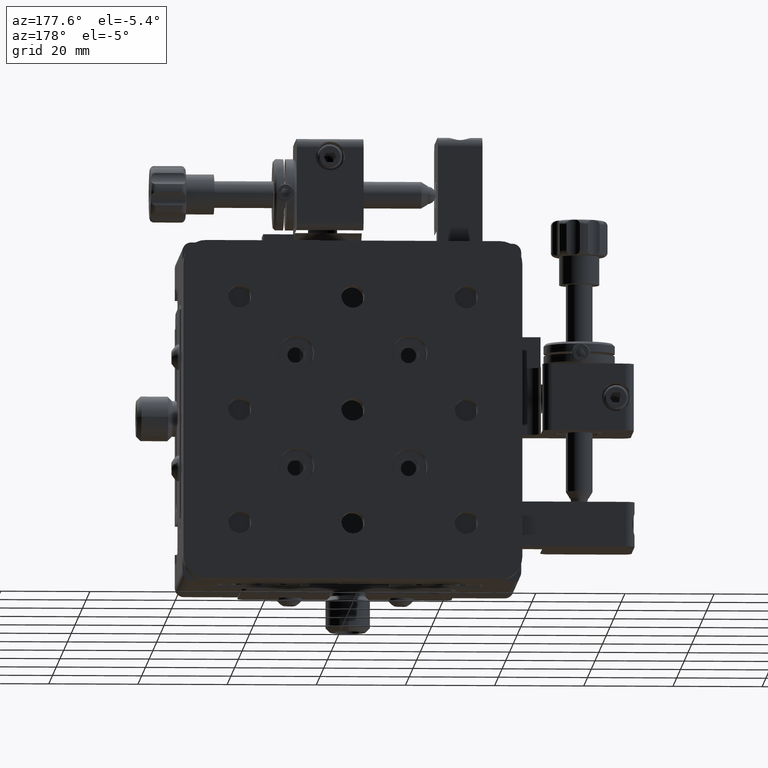
[diagram: clean part render]
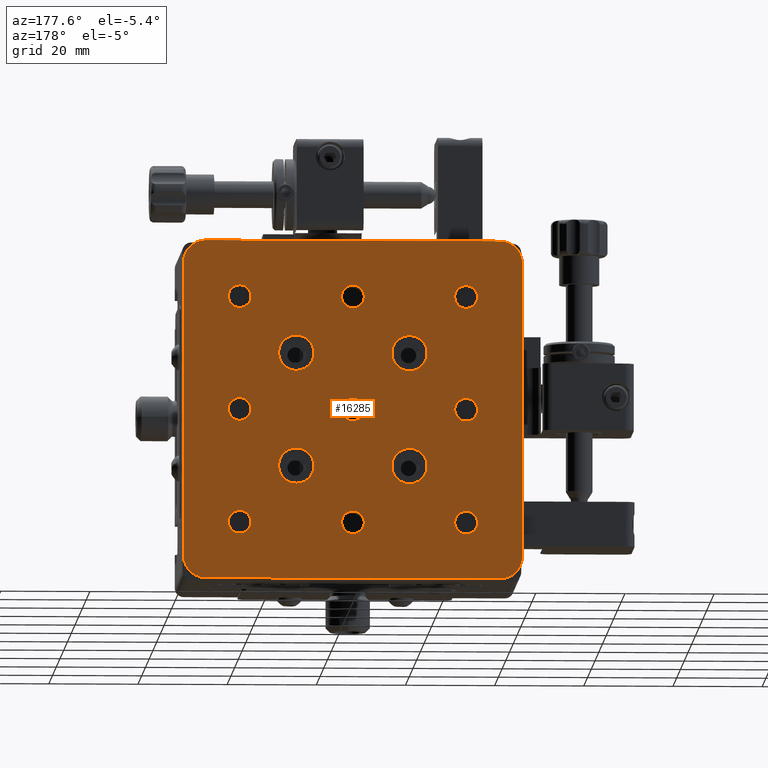
[diagram: same view with one face highlighted and labeled with its STEP entity id]
A machine part, auxiliary view. The second image highlights one B-rep face of the part: STEP entity #16285.
In plain terms, the highlighted planar face has unit normal (0, -1, -0).
Its self-contained STEP definition (entity closure, byte-faithful):
#28 = AXIS2_PLACEMENT_3D ( 'NONE', #21221, #48340, #25168 ) ;
#181 = DIRECTION ( 'NONE',  ( -0.0000000000000000000, 1.000000000000000000, 1.255391989193742200E-016 ) ) ;
#552 = DIRECTION ( 'NONE',  ( 0.0000000000000000000, 0.0000000000000000000, 1.000000000000000000 ) ) ;
#658 = LINE ( 'NONE', #979, #30408 ) ;
#686 = DIRECTION ( 'NONE',  ( 0.0000000000000000000, 0.0000000000000000000, 1.000000000000000000 ) ) ;
#709 = AXIS2_PLACEMENT_3D ( 'NONE', #12782, #39938, #16747 ) ;
#759 = EDGE_CURVE ( 'NONE', #27833, #17888, #25054, .T. ) ;
#979 = CARTESIAN_POINT ( 'NONE',  ( -20.90904611341227300, 26.72072674568024200, 65.15000000000063100 ) ) ;
#1044 = DIRECTION ( 'NONE',  ( 0.0000000000000000000, 0.0000000000000000000, 1.000000000000000000 ) ) ;
#1069 = EDGE_CURVE ( 'NONE', #49392, #33543, #10362, .T. ) ;
#1211 = EDGE_CURVE ( 'NONE', #41131, #49405, #35839, .T. ) ;
#1390 = VECTOR ( 'NONE', #48380, 1000.000000000000000 ) ;
#2014 = AXIS2_PLACEMENT_3D ( 'NONE', #44760, #21518, #48653 ) ;
#2039 = EDGE_CURVE ( 'NONE', #42735, #25531, #45935, .T. ) ;
#2400 = EDGE_LOOP ( 'NONE', ( #6174, #25508 ) ) ;
#3147 = CIRCLE ( 'NONE', #28444, 5.000000000000004400 ) ;
#3298 = ORIENTED_EDGE ( 'NONE', *, *, #44447, .F. ) ;
#3602 = CARTESIAN_POINT ( 'NONE',  ( -8.309046113412266600, 26.72072674568023500, 131.1027000000006200 ) ) ;
#3789 = EDGE_LOOP ( 'NONE', ( #3298, #42057 ) ) ;
#3798 = CARTESIAN_POINT ( 'NONE',  ( 42.49095388658772500, 26.72072674568023500, 131.1027000000006200 ) ) ;
#3827 = AXIS2_PLACEMENT_3D ( 'NONE', #22685, #49820, #26631 ) ;
#4040 = ORIENTED_EDGE ( 'NONE', *, *, #41491, .F. ) ;
#4052 = CARTESIAN_POINT ( 'NONE',  ( 17.09095388658772700, 26.72072674568024200, 75.19730000000063800 ) ) ;
#4286 = CIRCLE ( 'NONE', #38665, 2.552699999999990900 ) ;
#4581 = CARTESIAN_POINT ( 'NONE',  ( -15.90904611341228200, 26.72072674568023500, 136.1500000000006300 ) ) ;
#4604 = CARTESIAN_POINT ( 'NONE',  ( -8.309046113412273700, 26.72072674568024200, 103.1500000000006500 ) ) ;
#4646 = AXIS2_PLACEMENT_3D ( 'NONE', #12285, #39410, #16239 ) ;
#4709 = VERTEX_POINT ( 'NONE', #45849 ) ;
#4791 = EDGE_CURVE ( 'NONE', #14918, #16679, #27374, .T. ) ;
#4888 = EDGE_CURVE ( 'NONE', #16679, #14918, #13954, .T. ) ;
#4901 = DIRECTION ( 'NONE',  ( 0.0000000000000000000, -1.255391989193742200E-016, 1.000000000000000000 ) ) ;
#4998 = VERTEX_POINT ( 'NONE', #28354 ) ;
#5376 = FACE_BOUND ( 'NONE', #40059, .T. ) ;
#5543 = ORIENTED_EDGE ( 'NONE', *, *, #1211, .F. ) ;
#5999 = CARTESIAN_POINT ( 'NONE',  ( 29.79095388658772900, 26.72072674568024200, 94.41875000000062800 ) ) ;
#6070 = AXIS2_PLACEMENT_3D ( 'NONE', #34541, #11266, #38403 ) ;
#6174 = ORIENTED_EDGE ( 'NONE', *, *, #49713, .F. ) ;
#6206 = CARTESIAN_POINT ( 'NONE',  ( 17.09095388658772700, 26.72072674568024200, 100.5973000000006400 ) ) ;
#6208 = EDGE_CURVE ( 'NONE', #22260, #4998, #30592, .T. ) ;
#6237 = DIRECTION ( 'NONE',  ( -0.0000000000000000000, 1.000000000000000000, 1.255391989193742200E-016 ) ) ;
#6403 = CARTESIAN_POINT ( 'NONE',  ( 42.49095388658772500, 26.72072674568024200, 75.19730000000063800 ) ) ;
#6427 = ORIENTED_EDGE ( 'NONE', *, *, #6208, .T. ) ;
#6594 = FACE_BOUND ( 'NONE', #26735, .T. ) ;
#6697 = AXIS2_PLACEMENT_3D ( 'NONE', #12980, #40139, #16937 ) ;
#7084 = CARTESIAN_POINT ( 'NONE',  ( 17.09095388658772700, 26.72072674568024200, 80.30270000000061300 ) ) ;
#7111 = VERTEX_POINT ( 'NONE', #37256 ) ;
#7547 = DIRECTION ( 'NONE',  ( -0.0000000000000000000, 1.000000000000000000, 1.255391989193742200E-016 ) ) ;
#7640 = AXIS2_PLACEMENT_3D ( 'NONE', #36658, #13381, #40505 ) ;
#7734 = VERTEX_POINT ( 'NONE', #15193 ) ;
#7783 = AXIS2_PLACEMENT_3D ( 'NONE', #30777, #7547, #34721 ) ;
#7796 = CIRCLE ( 'NONE', #38216, 5.000000000000004400 ) ;
#7978 = CARTESIAN_POINT ( 'NONE',  ( 17.09095388658772700, 26.72072674568023500, 125.9973000000006500 ) ) ;
#8341 = CIRCLE ( 'NONE', #28426, 2.552699999999990900 ) ;
#8468 = DIRECTION ( 'NONE',  ( 0.0000000000000000000, 0.0000000000000000000, -1.000000000000000000 ) ) ;
#8499 = DIRECTION ( 'NONE',  ( 0.0000000000000000000, 0.0000000000000000000, 1.000000000000000000 ) ) ;
#8650 = EDGE_CURVE ( 'NONE', #41216, #13347, #35759, .T. ) ;
#8675 = AXIS2_PLACEMENT_3D ( 'NONE', #46041, #22797, #49931 ) ;
#8766 = CIRCLE ( 'NONE', #25257, 2.552699999999990900 ) ;
#8939 = PLANE ( 'NONE',  #6697 ) ;
#9123 = DIRECTION ( 'NONE',  ( -0.0000000000000000000, 1.000000000000000000, 1.255391989193742200E-016 ) ) ;
#9206 = DIRECTION ( 'NONE',  ( -0.0000000000000000000, 1.000000000000000000, 1.255391989193742200E-016 ) ) ;
#9216 = CARTESIAN_POINT ( 'NONE',  ( 50.09095388658772700, 26.72072674568024200, 70.15000000000063100 ) ) ;
#9225 = CARTESIAN_POINT ( 'NONE',  ( -20.90904611341227300, 26.72072674568024200, 70.15000000000063100 ) ) ;
#9244 = EDGE_CURVE ( 'NONE', #22272, #49644, #16278, .T. ) ;
#9307 = CARTESIAN_POINT ( 'NONE',  ( 29.79095388658772900, 26.72072674568024200, 86.48125000000061400 ) ) ;
#9631 = AXIS2_PLACEMENT_3D ( 'NONE', #35747, #12473, #39618 ) ;
#9831 = EDGE_CURVE ( 'NONE', #14788, #48588, #33730, .T. ) ;
#10296 = DIRECTION ( 'NONE',  ( -0.0000000000000000000, 1.000000000000000000, 1.255391989193742200E-016 ) ) ;
#10362 = CIRCLE ( 'NONE', #17009, 2.552699999999990900 ) ;
#11046 = CIRCLE ( 'NONE', #4646, 2.552699999999990900 ) ;
#11160 = VECTOR ( 'NONE', #43597, 1000.000000000000000 ) ;
#11192 = CIRCLE ( 'NONE', #6070, 2.552699999999990900 ) ;
#11266 = DIRECTION ( 'NONE',  ( -0.0000000000000000000, 1.000000000000000000, 1.255391989193742200E-016 ) ) ;
#11475 = AXIS2_PLACEMENT_3D ( 'NONE', #35622, #12350, #39479 ) ;
#11583 = DIRECTION ( 'NONE',  ( -0.0000000000000000000, 1.000000000000000000, 1.255391989193742200E-016 ) ) ;
#11698 = LINE ( 'NONE', #32801, #1390 ) ;
#12007 = EDGE_LOOP ( 'NONE', ( #43731, #40964 ) ) ;
#12093 = CARTESIAN_POINT ( 'NONE',  ( -8.309046113412273700, 26.72072674568024200, 100.5973000000006600 ) ) ;
#12149 = CIRCLE ( 'NONE', #46498, 2.552699999999990900 ) ;
#12187 = ORIENTED_EDGE ( 'NONE', *, *, #2039, .F. ) ;
#12285 = CARTESIAN_POINT ( 'NONE',  ( -8.309046113412266600, 26.72072674568023500, 128.5500000000006400 ) ) ;
#12350 = DIRECTION ( 'NONE',  ( -0.0000000000000000000, 1.000000000000000000, 1.255391989193742200E-016 ) ) ;
#12473 = DIRECTION ( 'NONE',  ( -0.0000000000000000000, 1.000000000000000000, 1.255391989193742200E-016 ) ) ;
#12492 = EDGE_CURVE ( 'NONE', #48588, #14788, #38471, .T. ) ;
#12782 = CARTESIAN_POINT ( 'NONE',  ( 17.09095388658772700, 26.72072674568024200, 103.1500000000006300 ) ) ;
#12980 = CARTESIAN_POINT ( 'NONE',  ( 55.09095388658772700, 26.72072674568024200, 65.15000000000063100 ) ) ;
#13091 = DIRECTION ( 'NONE',  ( 0.0000000000000000000, 0.0000000000000000000, -1.000000000000000000 ) ) ;
#13347 = VERTEX_POINT ( 'NONE', #42267 ) ;
#13381 = DIRECTION ( 'NONE',  ( -0.0000000000000000000, 1.000000000000000000, 1.255391989193742200E-016 ) ) ;
#13597 = CARTESIAN_POINT ( 'NONE',  ( 42.49095388658772500, 26.72072674568024200, 105.7027000000006200 ) ) ;
#13662 = CARTESIAN_POINT ( 'NONE',  ( -8.309046113412273700, 26.72072674568024200, 105.7027000000006300 ) ) ;
#13954 = CIRCLE ( 'NONE', #28329, 2.552699999999990900 ) ;
#14088 = EDGE_CURVE ( 'NONE', #4998, #15269, #41809, .T. ) ;
#14654 = CARTESIAN_POINT ( 'NONE',  ( -8.309046113412266600, 26.72072674568023500, 125.9973000000006500 ) ) ;
#14739 = EDGE_LOOP ( 'NONE', ( #50279, #43148 ) ) ;
#14788 = VERTEX_POINT ( 'NONE', #44011 ) ;
#14918 = VERTEX_POINT ( 'NONE', #13662 ) ;
#15161 = ORIENTED_EDGE ( 'NONE', *, *, #18399, .F. ) ;
#15193 = CARTESIAN_POINT ( 'NONE',  ( -20.90904611341227300, 26.72072674568023500, 136.1500000000006300 ) ) ;
#15269 = VERTEX_POINT ( 'NONE', #9225 ) ;
#15421 = CARTESIAN_POINT ( 'NONE',  ( 55.09095388658772700, 26.72072674568023500, 136.1500000000006300 ) ) ;
#15429 = CARTESIAN_POINT ( 'NONE',  ( 42.49095388658772500, 26.72072674568024200, 80.30270000000061300 ) ) ;
#15530 = VERTEX_POINT ( 'NONE', #3602 ) ;
#15594 = CARTESIAN_POINT ( 'NONE',  ( 55.09095388658772700, 26.72072674568024200, 65.15000000000063100 ) ) ;
#15739 = FACE_BOUND ( 'NONE', #12007, .T. ) ;
#16062 = AXIS2_PLACEMENT_3D ( 'NONE', #17199, #44280, #21067 ) ;
#16239 = DIRECTION ( 'NONE',  ( 0.0000000000000000000, 0.0000000000000000000, 1.000000000000000000 ) ) ;
#16278 = CIRCLE ( 'NONE', #29132, 2.552699999999990900 ) ;
#16285 = ADVANCED_FACE ( 'NONE', ( #39960, #18151, #47832, #37538, #27264, #16936, #6594, #46653, #36336, #26049, #15739, #5376, #45431, #35148 ), #8939, .F. ) ;
#16679 = VERTEX_POINT ( 'NONE', #12093 ) ;
#16682 = EDGE_LOOP ( 'NONE', ( #42639, #5543 ) ) ;
#16687 = CARTESIAN_POINT ( 'NONE',  ( 42.49095388658772500, 26.72072674568024200, 103.1500000000006300 ) ) ;
#16747 = DIRECTION ( 'NONE',  ( 0.0000000000000000000, 0.0000000000000000000, 1.000000000000000000 ) ) ;
#16789 = AXIS2_PLACEMENT_3D ( 'NONE', #17576, #44680, #21447 ) ;
#16818 = ORIENTED_EDGE ( 'NONE', *, *, #25169, .F. ) ;
#16936 = FACE_BOUND ( 'NONE', #45068, .T. ) ;
#16937 = DIRECTION ( 'NONE',  ( 0.0000000000000000000, 1.255391989193742200E-016, -1.000000000000000000 ) ) ;
#17009 = AXIS2_PLACEMENT_3D ( 'NONE', #34869, #11583, #38701 ) ;
#17199 = CARTESIAN_POINT ( 'NONE',  ( -8.309046113412266600, 26.72072674568024200, 77.75000000000062500 ) ) ;
#17576 = CARTESIAN_POINT ( 'NONE',  ( 17.09095388658772700, 26.72072674568023500, 128.5500000000006400 ) ) ;
#17888 = VERTEX_POINT ( 'NONE', #6206 ) ;
#18151 = FACE_BOUND ( 'NONE', #3789, .T. ) ;
#18187 = EDGE_LOOP ( 'NONE', ( #40384, #33477 ) ) ;
#18399 = EDGE_CURVE ( 'NONE', #13347, #41216, #45199, .T. ) ;
#19201 = CARTESIAN_POINT ( 'NONE',  ( 17.09095388658772700, 26.72072674568024200, 77.75000000000062500 ) ) ;
#19250 = CARTESIAN_POINT ( 'NONE',  ( -8.309046113412273700, 26.72072674568024200, 103.1500000000006500 ) ) ;
#19386 = EDGE_CURVE ( 'NONE', #15269, #7734, #658, .T. ) ;
#19890 = DIRECTION ( 'NONE',  ( -0.0000000000000000000, 1.000000000000000000, 1.255391989193742200E-016 ) ) ;
#19942 = ORIENTED_EDGE ( 'NONE', *, *, #45354, .F. ) ;
#19971 = DIRECTION ( 'NONE',  ( -0.0000000000000000000, 1.000000000000000000, 1.255391989193742200E-016 ) ) ;
#20191 = CIRCLE ( 'NONE', #32404, 2.552699999999990900 ) ;
#20519 = CARTESIAN_POINT ( 'NONE',  ( 4.390953886587728200, 26.72072674568023500, 119.8187500000006300 ) ) ;
#20559 = AXIS2_PLACEMENT_3D ( 'NONE', #32336, #9123, #36280 ) ;
#20562 = DIRECTION ( 'NONE',  ( 0.0000000000000000000, 0.0000000000000000000, 1.000000000000000000 ) ) ;
#20755 = CARTESIAN_POINT ( 'NONE',  ( -8.309046113412266600, 26.72072674568024200, 75.19730000000063800 ) ) ;
#21067 = DIRECTION ( 'NONE',  ( 0.0000000000000000000, 0.0000000000000000000, 1.000000000000000000 ) ) ;
#21221 = CARTESIAN_POINT ( 'NONE',  ( 42.49095388658772500, 26.72072674568024200, 103.1500000000006300 ) ) ;
#21447 = DIRECTION ( 'NONE',  ( 0.0000000000000000000, 0.0000000000000000000, 1.000000000000000000 ) ) ;
#21518 = DIRECTION ( 'NONE',  ( -0.0000000000000000000, 1.000000000000000000, 1.255391989193742200E-016 ) ) ;
#22260 = VERTEX_POINT ( 'NONE', #42688 ) ;
#22272 = VERTEX_POINT ( 'NONE', #7978 ) ;
#22685 = CARTESIAN_POINT ( 'NONE',  ( 29.79095388658772900, 26.72072674568024200, 90.45000000000062800 ) ) ;
#22797 = DIRECTION ( 'NONE',  ( -0.0000000000000000000, 1.000000000000000000, 1.255391989193742200E-016 ) ) ;
#22822 = ORIENTED_EDGE ( 'NONE', *, *, #14088, .T. ) ;
#23051 = DIRECTION ( 'NONE',  ( 0.0000000000000000000, 0.0000000000000000000, 1.000000000000000000 ) ) ;
#23108 = DIRECTION ( 'NONE',  ( 0.0000000000000000000, 0.0000000000000000000, 1.000000000000000000 ) ) ;
#23392 = CARTESIAN_POINT ( 'NONE',  ( -8.309046113412266600, 26.72072674568024200, 77.75000000000062500 ) ) ;
#23820 = DIRECTION ( 'NONE',  ( -0.0000000000000000000, 1.000000000000000000, 1.255391989193742200E-016 ) ) ;
#23945 = DIRECTION ( 'NONE',  ( -0.0000000000000000000, 1.000000000000000000, 1.255391989193742200E-016 ) ) ;
#24115 = AXIS2_PLACEMENT_3D ( 'NONE', #19250, #46354, #23108 ) ;
#24120 = ORIENTED_EDGE ( 'NONE', *, *, #37984, .F. ) ;
#24313 = DIRECTION ( 'NONE',  ( -0.0000000000000000000, 1.000000000000000000, 1.255391989193742200E-016 ) ) ;
#25054 = CIRCLE ( 'NONE', #709, 2.552699999999990900 ) ;
#25168 = DIRECTION ( 'NONE',  ( 0.0000000000000000000, 0.0000000000000000000, 1.000000000000000000 ) ) ;
#25169 = EDGE_CURVE ( 'NONE', #29284, #7111, #8341, .T. ) ;
#25257 = AXIS2_PLACEMENT_3D ( 'NONE', #47494, #24313, #1044 ) ;
#25508 = ORIENTED_EDGE ( 'NONE', *, *, #40890, .F. ) ;
#25531 = VERTEX_POINT ( 'NONE', #42337 ) ;
#26049 = FACE_BOUND ( 'NONE', #38538, .T. ) ;
#26091 = CIRCLE ( 'NONE', #3827, 3.968750000000007100 ) ;
#26188 = AXIS2_PLACEMENT_3D ( 'NONE', #16687, #43753, #20562 ) ;
#26614 = CARTESIAN_POINT ( 'NONE',  ( 55.09095388658772700, 26.72072674568024200, 70.15000000000063100 ) ) ;
#26631 = DIRECTION ( 'NONE',  ( 0.0000000000000000000, 0.0000000000000000000, 1.000000000000000000 ) ) ;
#26735 = EDGE_LOOP ( 'NONE', ( #34850, #36798 ) ) ;
#26771 = VERTEX_POINT ( 'NONE', #4052 ) ;
#27264 = FACE_BOUND ( 'NONE', #18187, .T. ) ;
#27324 = DIRECTION ( 'NONE',  ( 0.0000000000000000000, 0.0000000000000000000, 1.000000000000000000 ) ) ;
#27374 = CIRCLE ( 'NONE', #24115, 2.552699999999990900 ) ;
#27833 = VERTEX_POINT ( 'NONE', #39342 ) ;
#27855 = VERTEX_POINT ( 'NONE', #47308 ) ;
#27914 = CIRCLE ( 'NONE', #41905, 3.968750000000007100 ) ;
#28329 = AXIS2_PLACEMENT_3D ( 'NONE', #4604, #31740, #8499 ) ;
#28354 = CARTESIAN_POINT ( 'NONE',  ( -15.90904611341228200, 26.72072674568024200, 65.15000000000063100 ) ) ;
#28426 = AXIS2_PLACEMENT_3D ( 'NONE', #47151, #23945, #686 ) ;
#28444 = AXIS2_PLACEMENT_3D ( 'NONE', #4581, #31716, #8468 ) ;
#28686 = AXIS2_PLACEMENT_3D ( 'NONE', #47029, #23820, #552 ) ;
#28849 = ORIENTED_EDGE ( 'NONE', *, *, #49189, .T. ) ;
#29012 = VERTEX_POINT ( 'NONE', #5999 ) ;
#29132 = AXIS2_PLACEMENT_3D ( 'NONE', #33539, #10296, #37433 ) ;
#29284 = VERTEX_POINT ( 'NONE', #3798 ) ;
#29418 = CIRCLE ( 'NONE', #8675, 2.552699999999990900 ) ;
#29487 = CARTESIAN_POINT ( 'NONE',  ( 29.79095388658772900, 26.72072674568024200, 90.45000000000062800 ) ) ;
#30094 = VERTEX_POINT ( 'NONE', #9307 ) ;
#30352 = VERTEX_POINT ( 'NONE', #26614 ) ;
#30408 = VECTOR ( 'NONE', #4901, 1000.000000000000000 ) ;
#30592 = LINE ( 'NONE', #15594, #39675 ) ;
#30777 = CARTESIAN_POINT ( 'NONE',  ( -8.309046113412266600, 26.72072674568023500, 128.5500000000006400 ) ) ;
#30810 = EDGE_LOOP ( 'NONE', ( #6427, #22822, #35631, #36627, #35884, #28849, #48996, #32810 ) ) ;
#31023 = EDGE_CURVE ( 'NONE', #30352, #47433, #42075, .T. ) ;
#31308 = CARTESIAN_POINT ( 'NONE',  ( 17.09095388658772700, 26.72072674568023500, 131.1027000000006200 ) ) ;
#31716 = DIRECTION ( 'NONE',  ( -0.0000000000000000000, 1.000000000000000000, 1.255391989193742200E-016 ) ) ;
#31740 = DIRECTION ( 'NONE',  ( -0.0000000000000000000, 1.000000000000000000, 1.255391989193742200E-016 ) ) ;
#31850 = VERTEX_POINT ( 'NONE', #49778 ) ;
#32285 = CIRCLE ( 'NONE', #16789, 2.552699999999990900 ) ;
#32336 = CARTESIAN_POINT ( 'NONE',  ( 50.09095388658772700, 26.72072674568023500, 136.1500000000006300 ) ) ;
#32404 = AXIS2_PLACEMENT_3D ( 'NONE', #43145, #19971, #47079 ) ;
#32421 = CARTESIAN_POINT ( 'NONE',  ( 4.390953886587726500, 26.72072674568024200, 90.45000000000062800 ) ) ;
#32622 = EDGE_CURVE ( 'NONE', #17888, #27833, #8766, .T. ) ;
#32801 = CARTESIAN_POINT ( 'NONE',  ( 55.09095388658772700, 26.72072674568023500, 141.1500000000006300 ) ) ;
#32810 = ORIENTED_EDGE ( 'NONE', *, *, #39559, .T. ) ;
#33360 = DIRECTION ( 'NONE',  ( 0.0000000000000000000, 0.0000000000000000000, 1.000000000000000000 ) ) ;
#33475 = VERTEX_POINT ( 'NONE', #7084 ) ;
#33477 = ORIENTED_EDGE ( 'NONE', *, *, #32622, .F. ) ;
#33539 = CARTESIAN_POINT ( 'NONE',  ( 17.09095388658772700, 26.72072674568023500, 128.5500000000006400 ) ) ;
#33543 = VERTEX_POINT ( 'NONE', #15429 ) ;
#33654 = EDGE_CURVE ( 'NONE', #33543, #49392, #20191, .T. ) ;
#33730 = CIRCLE ( 'NONE', #9631, 3.968750000000007100 ) ;
#33965 = VERTEX_POINT ( 'NONE', #40760 ) ;
#34541 = CARTESIAN_POINT ( 'NONE',  ( 42.49095388658772500, 26.72072674568023500, 128.5500000000006400 ) ) ;
#34721 = DIRECTION ( 'NONE',  ( 0.0000000000000000000, 0.0000000000000000000, 1.000000000000000000 ) ) ;
#34850 = ORIENTED_EDGE ( 'NONE', *, *, #33654, .F. ) ;
#34869 = CARTESIAN_POINT ( 'NONE',  ( 42.49095388658772500, 26.72072674568024200, 77.75000000000062500 ) ) ;
#35148 = FACE_OUTER_BOUND ( 'NONE', #30810, .T. ) ;
#35166 = ORIENTED_EDGE ( 'NONE', *, *, #12492, .F. ) ;
#35197 = ORIENTED_EDGE ( 'NONE', *, *, #41148, .F. ) ;
#35359 = AXIS2_PLACEMENT_3D ( 'NONE', #43048, #19890, #46995 ) ;
#35475 = EDGE_LOOP ( 'NONE', ( #4040, #37883 ) ) ;
#35622 = CARTESIAN_POINT ( 'NONE',  ( 29.79095388658772900, 26.72072674568023500, 115.8500000000006300 ) ) ;
#35631 = ORIENTED_EDGE ( 'NONE', *, *, #19386, .T. ) ;
#35747 = CARTESIAN_POINT ( 'NONE',  ( 4.390953886587728200, 26.72072674568023500, 115.8500000000006300 ) ) ;
#35759 = CIRCLE ( 'NONE', #26188, 2.552699999999990900 ) ;
#35839 = CIRCLE ( 'NONE', #16062, 2.552699999999990900 ) ;
#35884 = ORIENTED_EDGE ( 'NONE', *, *, #43902, .F. ) ;
#36027 = CARTESIAN_POINT ( 'NONE',  ( 29.79095388658772900, 26.72072674568023500, 119.8187500000006300 ) ) ;
#36280 = DIRECTION ( 'NONE',  ( 0.0000000000000000000, 0.0000000000000000000, -1.000000000000000000 ) ) ;
#36336 = FACE_BOUND ( 'NONE', #16682, .T. ) ;
#36355 = DIRECTION ( 'NONE',  ( 0.0000000000000000000, 0.0000000000000000000, 1.000000000000000000 ) ) ;
#36370 = DIRECTION ( 'NONE',  ( -0.0000000000000000000, 1.000000000000000000, 1.255391989193742200E-016 ) ) ;
#36627 = ORIENTED_EDGE ( 'NONE', *, *, #38646, .T. ) ;
#36658 = CARTESIAN_POINT ( 'NONE',  ( 29.79095388658772900, 26.72072674568023500, 115.8500000000006300 ) ) ;
#36798 = ORIENTED_EDGE ( 'NONE', *, *, #1069, .F. ) ;
#37256 = CARTESIAN_POINT ( 'NONE',  ( 42.49095388658772500, 26.72072674568023500, 125.9973000000006500 ) ) ;
#37433 = DIRECTION ( 'NONE',  ( 0.0000000000000000000, 0.0000000000000000000, 1.000000000000000000 ) ) ;
#37438 = CARTESIAN_POINT ( 'NONE',  ( -8.309046113412266600, 26.72072674568024200, 80.30270000000061300 ) ) ;
#37538 = FACE_BOUND ( 'NONE', #14739, .T. ) ;
#37883 = ORIENTED_EDGE ( 'NONE', *, *, #37946, .F. ) ;
#37946 = EDGE_CURVE ( 'NONE', #26771, #33475, #29418, .T. ) ;
#37984 = EDGE_CURVE ( 'NONE', #7111, #29284, #11192, .T. ) ;
#38216 = AXIS2_PLACEMENT_3D ( 'NONE', #9216, #36370, #13091 ) ;
#38403 = DIRECTION ( 'NONE',  ( 0.0000000000000000000, 0.0000000000000000000, 1.000000000000000000 ) ) ;
#38471 = CIRCLE ( 'NONE', #28686, 3.968750000000007100 ) ;
#38538 = EDGE_LOOP ( 'NONE', ( #35197, #19942 ) ) ;
#38646 = EDGE_CURVE ( 'NONE', #7734, #33965, #3147, .T. ) ;
#38665 = AXIS2_PLACEMENT_3D ( 'NONE', #19201, #46307, #23051 ) ;
#38701 = DIRECTION ( 'NONE',  ( 0.0000000000000000000, 0.0000000000000000000, 1.000000000000000000 ) ) ;
#38771 = DIRECTION ( 'NONE',  ( -1.000000000000000000, -0.0000000000000000000, -0.0000000000000000000 ) ) ;
#39328 = ORIENTED_EDGE ( 'NONE', *, *, #43242, .F. ) ;
#39342 = CARTESIAN_POINT ( 'NONE',  ( 17.09095388658772700, 26.72072674568024200, 105.7027000000006200 ) ) ;
#39410 = DIRECTION ( 'NONE',  ( -0.0000000000000000000, 1.000000000000000000, 1.255391989193742200E-016 ) ) ;
#39479 = DIRECTION ( 'NONE',  ( 0.0000000000000000000, 0.0000000000000000000, 1.000000000000000000 ) ) ;
#39559 = EDGE_CURVE ( 'NONE', #30352, #22260, #7796, .T. ) ;
#39618 = DIRECTION ( 'NONE',  ( 0.0000000000000000000, 0.0000000000000000000, 1.000000000000000000 ) ) ;
#39675 = VECTOR ( 'NONE', #38771, 1000.000000000000000 ) ;
#39729 = CARTESIAN_POINT ( 'NONE',  ( 55.09095388658772700, 26.72072674568024200, 65.15000000000063100 ) ) ;
#39938 = DIRECTION ( 'NONE',  ( -0.0000000000000000000, 1.000000000000000000, 1.255391989193742200E-016 ) ) ;
#39960 = FACE_BOUND ( 'NONE', #47765, .T. ) ;
#39966 = ORIENTED_EDGE ( 'NONE', *, *, #8650, .F. ) ;
#40059 = EDGE_LOOP ( 'NONE', ( #12187, #39328 ) ) ;
#40139 = DIRECTION ( 'NONE',  ( 0.0000000000000000000, -1.000000000000000000, -1.255391989193742200E-016 ) ) ;
#40384 = ORIENTED_EDGE ( 'NONE', *, *, #759, .F. ) ;
#40505 = DIRECTION ( 'NONE',  ( 0.0000000000000000000, 0.0000000000000000000, 1.000000000000000000 ) ) ;
#40760 = CARTESIAN_POINT ( 'NONE',  ( -15.90904611341228200, 26.72072674568023500, 141.1500000000006300 ) ) ;
#40813 = CIRCLE ( 'NONE', #7783, 2.552699999999990900 ) ;
#40890 = EDGE_CURVE ( 'NONE', #47921, #15530, #40813, .T. ) ;
#40964 = ORIENTED_EDGE ( 'NONE', *, *, #45879, .F. ) ;
#41131 = VERTEX_POINT ( 'NONE', #20755 ) ;
#41148 = EDGE_CURVE ( 'NONE', #31850, #27855, #46252, .T. ) ;
#41216 = VERTEX_POINT ( 'NONE', #13597 ) ;
#41491 = EDGE_CURVE ( 'NONE', #33475, #26771, #4286, .T. ) ;
#41554 = EDGE_CURVE ( 'NONE', #49405, #41131, #12149, .T. ) ;
#41809 = CIRCLE ( 'NONE', #2014, 5.000000000000004400 ) ;
#41894 = EDGE_CURVE ( 'NONE', #29012, #30094, #27914, .T. ) ;
#41905 = AXIS2_PLACEMENT_3D ( 'NONE', #29487, #6237, #33360 ) ;
#42057 = ORIENTED_EDGE ( 'NONE', *, *, #9244, .F. ) ;
#42075 = LINE ( 'NONE', #39729, #11160 ) ;
#42267 = CARTESIAN_POINT ( 'NONE',  ( 42.49095388658772500, 26.72072674568024200, 100.5973000000006400 ) ) ;
#42337 = CARTESIAN_POINT ( 'NONE',  ( 29.79095388658772900, 26.72072674568023500, 111.8812500000006200 ) ) ;
#42639 = ORIENTED_EDGE ( 'NONE', *, *, #41554, .F. ) ;
#42688 = CARTESIAN_POINT ( 'NONE',  ( 50.09095388658772700, 26.72072674568024200, 65.15000000000063100 ) ) ;
#42735 = VERTEX_POINT ( 'NONE', #36027 ) ;
#43048 = CARTESIAN_POINT ( 'NONE',  ( 4.390953886587726500, 26.72072674568024200, 90.45000000000062800 ) ) ;
#43085 = CIRCLE ( 'NONE', #35359, 3.968750000000007100 ) ;
#43145 = CARTESIAN_POINT ( 'NONE',  ( 42.49095388658772500, 26.72072674568024200, 77.75000000000062500 ) ) ;
#43148 = ORIENTED_EDGE ( 'NONE', *, *, #4888, .F. ) ;
#43176 = AXIS2_PLACEMENT_3D ( 'NONE', #32421, #9206, #36355 ) ;
#43242 = EDGE_CURVE ( 'NONE', #25531, #42735, #47640, .T. ) ;
#43597 = DIRECTION ( 'NONE',  ( 0.0000000000000000000, -1.255391989193742200E-016, 1.000000000000000000 ) ) ;
#43731 = ORIENTED_EDGE ( 'NONE', *, *, #41894, .F. ) ;
#43753 = DIRECTION ( 'NONE',  ( -0.0000000000000000000, 1.000000000000000000, 1.255391989193742200E-016 ) ) ;
#43902 = EDGE_CURVE ( 'NONE', #4709, #33965, #11698, .T. ) ;
#44011 = CARTESIAN_POINT ( 'NONE',  ( 4.390953886587729100, 26.72072674568023500, 111.8812500000006200 ) ) ;
#44280 = DIRECTION ( 'NONE',  ( -0.0000000000000000000, 1.000000000000000000, 1.255391989193742200E-016 ) ) ;
#44447 = EDGE_CURVE ( 'NONE', #49644, #22272, #32285, .T. ) ;
#44460 = ORIENTED_EDGE ( 'NONE', *, *, #9831, .F. ) ;
#44680 = DIRECTION ( 'NONE',  ( -0.0000000000000000000, 1.000000000000000000, 1.255391989193742200E-016 ) ) ;
#44760 = CARTESIAN_POINT ( 'NONE',  ( -15.90904611341228200, 26.72072674568024200, 70.15000000000063100 ) ) ;
#45068 = EDGE_LOOP ( 'NONE', ( #39966, #15161 ) ) ;
#45199 = CIRCLE ( 'NONE', #28, 2.552699999999990900 ) ;
#45354 = EDGE_CURVE ( 'NONE', #27855, #31850, #43085, .T. ) ;
#45431 = FACE_BOUND ( 'NONE', #47885, .T. ) ;
#45849 = CARTESIAN_POINT ( 'NONE',  ( 50.09095388658772700, 26.72072674568023500, 141.1500000000006300 ) ) ;
#45879 = EDGE_CURVE ( 'NONE', #30094, #29012, #26091, .T. ) ;
#45935 = CIRCLE ( 'NONE', #7640, 3.968750000000007100 ) ;
#46041 = CARTESIAN_POINT ( 'NONE',  ( 17.09095388658772700, 26.72072674568024200, 77.75000000000062500 ) ) ;
#46252 = CIRCLE ( 'NONE', #43176, 3.968750000000007100 ) ;
#46307 = DIRECTION ( 'NONE',  ( -0.0000000000000000000, 1.000000000000000000, 1.255391989193742200E-016 ) ) ;
#46354 = DIRECTION ( 'NONE',  ( -0.0000000000000000000, 1.000000000000000000, 1.255391989193742200E-016 ) ) ;
#46498 = AXIS2_PLACEMENT_3D ( 'NONE', #23392, #181, #27324 ) ;
#46653 = FACE_BOUND ( 'NONE', #35475, .T. ) ;
#46995 = DIRECTION ( 'NONE',  ( 0.0000000000000000000, 0.0000000000000000000, 1.000000000000000000 ) ) ;
#47029 = CARTESIAN_POINT ( 'NONE',  ( 4.390953886587728200, 26.72072674568023500, 115.8500000000006300 ) ) ;
#47079 = DIRECTION ( 'NONE',  ( 0.0000000000000000000, 0.0000000000000000000, 1.000000000000000000 ) ) ;
#47151 = CARTESIAN_POINT ( 'NONE',  ( 42.49095388658772500, 26.72072674568023500, 128.5500000000006400 ) ) ;
#47308 = CARTESIAN_POINT ( 'NONE',  ( 4.390953886587727300, 26.72072674568024200, 86.48125000000061400 ) ) ;
#47433 = VERTEX_POINT ( 'NONE', #15421 ) ;
#47494 = CARTESIAN_POINT ( 'NONE',  ( 17.09095388658772700, 26.72072674568024200, 103.1500000000006300 ) ) ;
#47517 = CIRCLE ( 'NONE', #20559, 5.000000000000004400 ) ;
#47640 = CIRCLE ( 'NONE', #11475, 3.968750000000007100 ) ;
#47765 = EDGE_LOOP ( 'NONE', ( #16818, #24120 ) ) ;
#47832 = FACE_BOUND ( 'NONE', #2400, .T. ) ;
#47885 = EDGE_LOOP ( 'NONE', ( #35166, #44460 ) ) ;
#47921 = VERTEX_POINT ( 'NONE', #14654 ) ;
#48340 = DIRECTION ( 'NONE',  ( -0.0000000000000000000, 1.000000000000000000, 1.255391989193742200E-016 ) ) ;
#48380 = DIRECTION ( 'NONE',  ( -1.000000000000000000, -0.0000000000000000000, -0.0000000000000000000 ) ) ;
#48588 = VERTEX_POINT ( 'NONE', #20519 ) ;
#48653 = DIRECTION ( 'NONE',  ( 0.0000000000000000000, 0.0000000000000000000, -1.000000000000000000 ) ) ;
#48996 = ORIENTED_EDGE ( 'NONE', *, *, #31023, .F. ) ;
#49189 = EDGE_CURVE ( 'NONE', #4709, #47433, #47517, .T. ) ;
#49392 = VERTEX_POINT ( 'NONE', #6403 ) ;
#49405 = VERTEX_POINT ( 'NONE', #37438 ) ;
#49644 = VERTEX_POINT ( 'NONE', #31308 ) ;
#49713 = EDGE_CURVE ( 'NONE', #15530, #47921, #11046, .T. ) ;
#49778 = CARTESIAN_POINT ( 'NONE',  ( 4.390953886587726500, 26.72072674568024200, 94.41875000000062800 ) ) ;
#49820 = DIRECTION ( 'NONE',  ( -0.0000000000000000000, 1.000000000000000000, 1.255391989193742200E-016 ) ) ;
#49931 = DIRECTION ( 'NONE',  ( 0.0000000000000000000, 0.0000000000000000000, 1.000000000000000000 ) ) ;
#50279 = ORIENTED_EDGE ( 'NONE', *, *, #4791, .F. ) ;